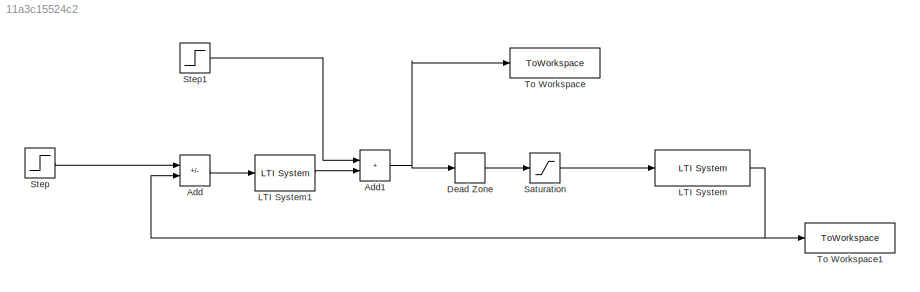
MODEL slx_11a3c15524c2
KIND model
CONFIG AbsTol = auto
CONFIG EnableMultiTasking = off
CONFIG FixedStep = auto
CONFIG MaxStep = auto
CONFIG MinStep = auto
CONFIG RelTol = 1e-3
CONFIG SampleTimeConstraint = Unconstrained
CONFIG SolverName = VariableStepAuto
CONFIG StartTime = 0.0
CONFIG StopTime = 1
BLOCK [Sum] Add
  IconShape = rectangular
  Inputs = +-
BLOCK [Sum] Add1
  IconShape = rectangular
BLOCK [DeadZone] Dead Zone
  LowerValue = -V_0
  UpperValue = V_0
BLOCK [Reference] LTI System  REF=cstblocks/LTI System
  SourceBlock = cstblocks/LTI System
  SourceType = LTI Block
BLOCK [Reference] LTI System1  REF=cstblocks/LTI System
  SourceBlock = cstblocks/LTI System
  SourceType = LTI Block
BLOCK [Saturate] Saturation
  LowerLimit = -(1-V_0)
  UpperLimit = 1 - V_0
BLOCK [Step] Step
  After = des_pos
  SampleTime = 0
  Time = 0
BLOCK [Step] Step1
  After = V_0
  SampleTime = 0
  Time = 0
BLOCK [ToWorkspace] To Workspace
  FixptAsFi = on
  MaxDataPoints = inf
  SampleTime = -1
  SaveFormat = Timeseries
  VariableName = volt
BLOCK [ToWorkspace] To Workspace1
  FixptAsFi = on
  MaxDataPoints = inf
  SampleTime = -1
  SaveFormat = Timeseries
  VariableName = pos
NET Add1:1 -> Dead Zone:1, To Workspace:1
LINE Add:1 -> LTI System1:1
LINE Dead Zone:1 -> Saturation:1
LINE LTI System1:1 -> Add1:2
NET LTI System:1 -> Add:2, To Workspace1:1
LINE Saturation:1 -> LTI System:1
LINE Step1:1 -> Add1:1
LINE Step:1 -> Add:1
note: NET lines group one-source signal fan-out (src -> all destinations, sorted); 1:1 wires keep LINE
